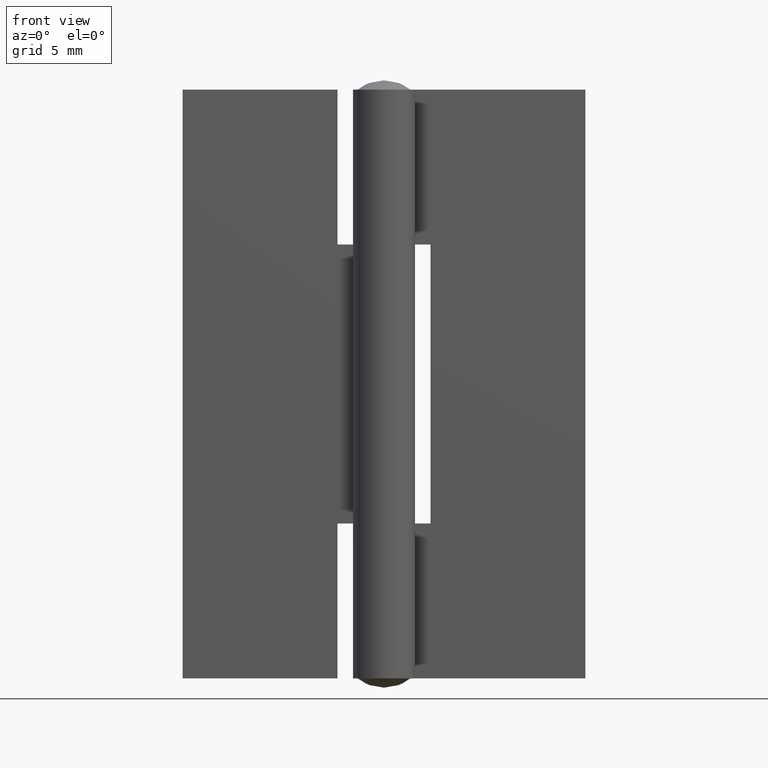
[diagram: clean part render]
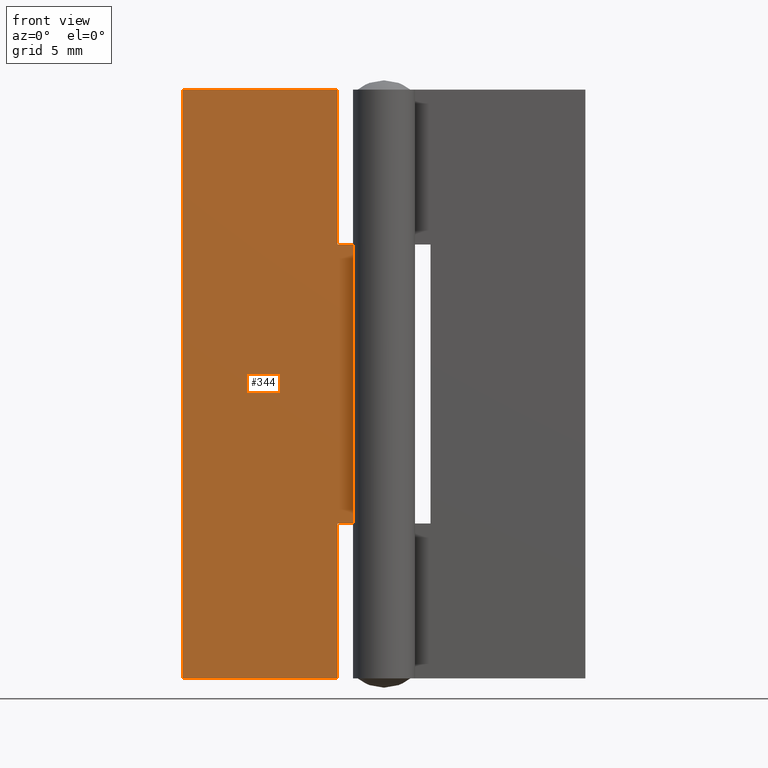
[diagram: same view with one face highlighted and labeled with its STEP entity id]
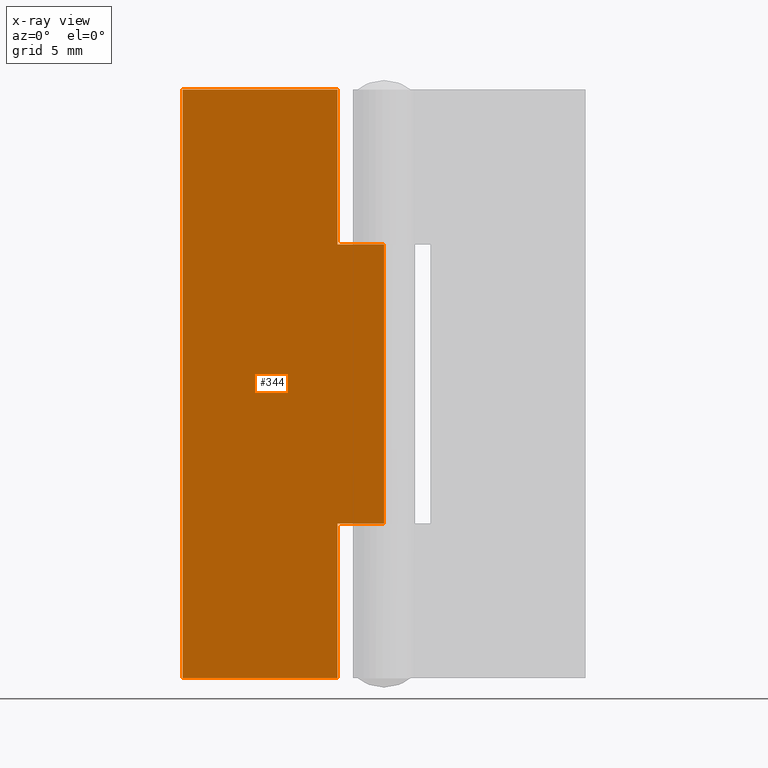
[diagram: x-ray of the same camera — body ghosted, the highlighted face saturated]
A machine part, front view. The second image highlights one B-rep face of the part: STEP entity #344.
The next image is the same camera in x-ray: the body ghosted, the highlighted face saturated — about 0% of this face is hidden behind the body in this view.
In plain terms, the highlighted face is a freeform B-spline surface patch.
Its self-contained STEP definition (entity closure, byte-faithful):
#10=CARTESIAN_POINT('',(-3.0,1.199999999999980,38.0));
#11=VERTEX_POINT('',#10);
#12=CARTESIAN_POINT('',(-3.0,1.199999999999980,28.0));
#13=VERTEX_POINT('',#12);
#14=CARTESIAN_POINT('',(-3.0,1.199999999999980,38.0));
#15=CARTESIAN_POINT('',(-3.0,1.199999999999980,28.0));
#16=QUASI_UNIFORM_CURVE('',1,(#14,#15),.UNSPECIFIED.,.F.,.U.);
#17=EDGE_CURVE('',#11,#13,#16,.T.);
#89=CARTESIAN_POINT('',(1.428433E-014,1.200000000000000,28.0));
#90=VERTEX_POINT('',#89);
#91=CARTESIAN_POINT('',(-3.0,1.199999999999980,28.0));
#92=CARTESIAN_POINT('',(1.428433E-014,1.200000000000000,28.0));
#93=QUASI_UNIFORM_CURVE('',1,(#91,#92),.UNSPECIFIED.,.F.,.U.);
#94=EDGE_CURVE('',#13,#90,#93,.T.);
#184=CARTESIAN_POINT('',(1.428433E-014,1.200000000000000,10.0));
#185=VERTEX_POINT('',#184);
#215=CARTESIAN_POINT('',(-3.0,1.199999999999980,9.999999999999890));
#216=VERTEX_POINT('',#215);
#217=CARTESIAN_POINT('',(1.428433E-014,1.200000000000000,10.0));
#218=CARTESIAN_POINT('',(-3.0,1.199999999999980,9.999999999999890));
#219=QUASI_UNIFORM_CURVE('',1,(#217,#218),.UNSPECIFIED.,.F.,.U.);
#220=EDGE_CURVE('',#185,#216,#219,.T.);
#242=CARTESIAN_POINT('',(-3.0,1.200000000000000,0.0));
#243=VERTEX_POINT('',#242);
#244=CARTESIAN_POINT('',(-3.0,1.199999999999980,9.999999999999890));
#245=CARTESIAN_POINT('',(-3.0,1.200000000000000,0.0));
#246=QUASI_UNIFORM_CURVE('',1,(#244,#245),.UNSPECIFIED.,.F.,.U.);
#247=EDGE_CURVE('',#216,#243,#246,.T.);
#271=CARTESIAN_POINT('',(-13.0,1.200000000000000,0.0));
#272=VERTEX_POINT('',#271);
#273=CARTESIAN_POINT('',(-3.0,1.200000000000000,0.0));
#274=CARTESIAN_POINT('',(-13.0,1.200000000000000,0.0));
#275=QUASI_UNIFORM_CURVE('',1,(#273,#274),.UNSPECIFIED.,.F.,.U.);
#276=EDGE_CURVE('',#243,#272,#275,.T.);
#298=CARTESIAN_POINT('',(-13.0,1.200000000000000,38.0));
#299=VERTEX_POINT('',#298);
#300=CARTESIAN_POINT('',(-3.0,1.199999999999980,38.0));
#301=CARTESIAN_POINT('',(-13.0,1.200000000000000,38.0));
#302=QUASI_UNIFORM_CURVE('',1,(#300,#301),.UNSPECIFIED.,.F.,.U.);
#303=EDGE_CURVE('',#11,#299,#302,.T.);
#321=CARTESIAN_POINT('',(-13.649349974803480,1.200000000000000,39.898099926348621));
#322=CARTESIAN_POINT('',(-13.649349974803480,1.200000000000000,-1.898100945588053));
#323=CARTESIAN_POINT('',(0.649350323490664,1.200000000000000,39.898099926348621));
#324=CARTESIAN_POINT('',(0.649350323490664,1.200000000000000,-1.898100945588053));
#325=B_SPLINE_SURFACE_WITH_KNOTS('',1,1,((#321,#323),(#322,#324)),.UNSPECIFIED.,.F.,.F.,.U.,(2,2),(2,2),(0.0,41.796200871936684),(0.0,14.298700298294150),.UNSPECIFIED.);
#326=ORIENTED_EDGE('',*,*,#94,.F.);
#327=ORIENTED_EDGE('',*,*,#17,.F.);
#328=ORIENTED_EDGE('',*,*,#303,.T.);
#329=CARTESIAN_POINT('',(-13.0,1.200000000000000,38.0));
#330=CARTESIAN_POINT('',(-13.0,1.200000000000000,0.0));
#331=QUASI_UNIFORM_CURVE('',1,(#329,#330),.UNSPECIFIED.,.F.,.U.);
#332=EDGE_CURVE('',#299,#272,#331,.T.);
#333=ORIENTED_EDGE('',*,*,#332,.T.);
#334=ORIENTED_EDGE('',*,*,#276,.F.);
#335=ORIENTED_EDGE('',*,*,#247,.F.);
#336=ORIENTED_EDGE('',*,*,#220,.F.);
#337=CARTESIAN_POINT('',(1.428433E-014,1.200000000000000,28.0));
#338=CARTESIAN_POINT('',(1.428433E-014,1.200000000000000,10.0));
#339=QUASI_UNIFORM_CURVE('',1,(#337,#338),.UNSPECIFIED.,.F.,.U.);
#340=EDGE_CURVE('',#90,#185,#339,.T.);
#341=ORIENTED_EDGE('',*,*,#340,.F.);
#342=EDGE_LOOP('',(#326,#327,#328,#333,#334,#335,#336,#341));
#343=FACE_OUTER_BOUND('',#342,.T.);
#344=ADVANCED_FACE('',(#343),#325,.T.);